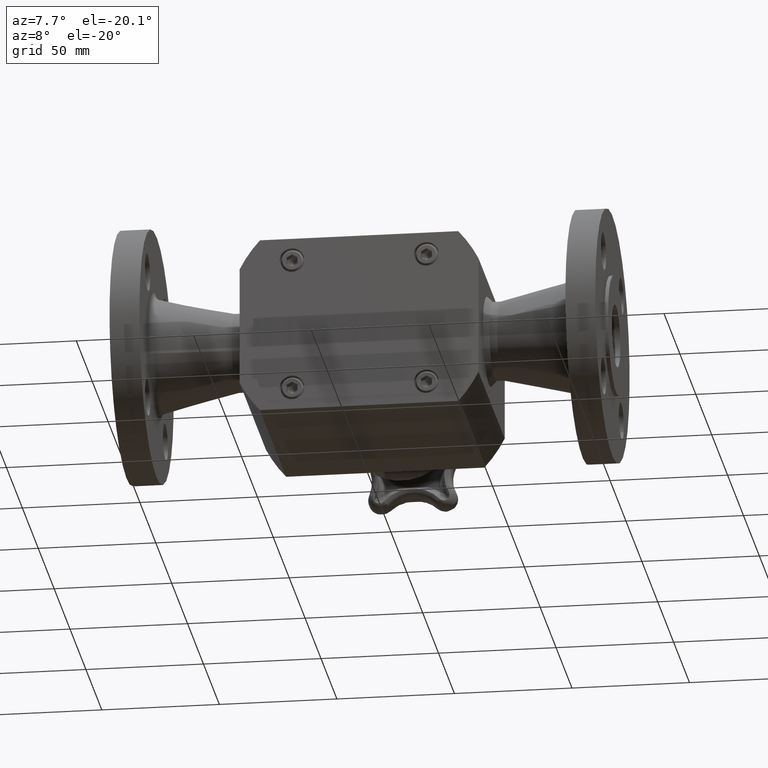
[diagram: clean part render]
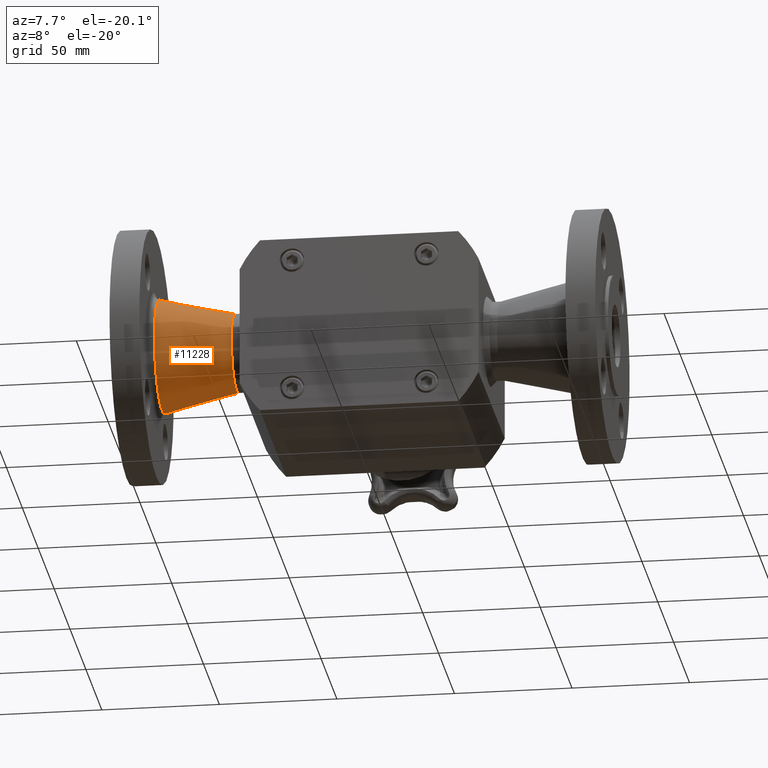
[diagram: same view with one face highlighted and labeled with its STEP entity id]
A machine part, auxiliary view. The second image highlights one B-rep face of the part: STEP entity #11228.
In plain terms, the highlighted conical surface has half-angle 13.107 deg.
Its self-contained STEP definition (entity closure, byte-faithful):
#11065=CARTESIAN_POINT('',(-2.225355513969999,0.669096118282323,-0.185112241726574));
#11066=VERTEX_POINT('',#11065);
#11067=CARTESIAN_POINT('',(-2.225355513969999,1.300000000000020,-4.846553E-016));
#11068=DIRECTION('',(-1.000000000000000,3.122502E-016,-3.122502E-016));
#11069=DIRECTION('',(4.415885E-016,0.707106781186553,-0.707106781186542));
#11070=AXIS2_PLACEMENT_3D('',#11067,#11068,#11069);
#11071=CIRCLE('',#11070,0.657500000003000);
#11072=EDGE_CURVE('',#11066,#11066,#11071,.T.);
#11205=CARTESIAN_POINT('',(-3.474712463687999,0.389967266261841,-0.267010877993822));
#11206=VERTEX_POINT('',#11205);
#11207=CARTESIAN_POINT('',(-3.474712463687999,1.300000000000021,-4.846553E-016));
#11208=DIRECTION('',(-1.000000000000000,3.122502E-016,-3.122502E-016));
#11209=DIRECTION('',(4.415885E-016,0.707106781186553,-0.707106781186542));
#11210=AXIS2_PLACEMENT_3D('',#11207,#11208,#11209);
#11211=CIRCLE('',#11210,0.948395690333000);
#11212=EDGE_CURVE('',#11206,#11206,#11211,.T.);
#11217=CARTESIAN_POINT('',(-3.696345870648049,1.300000000000021,-4.846553E-016));
#11218=DIRECTION('',(-1.0,6.245005E-016,0.0));
#11219=DIRECTION('',(-5.992392E-016,-0.959549629984896,-0.281539531142339));
#11220=AXIS2_PLACEMENT_3D('',#11217,#11218,#11219);
#11221=CONICAL_SURFACE('',#11220,1.000000000000000,13.107013607810845);
#11222=ORIENTED_EDGE('',*,*,#11212,.F.);
#11223=EDGE_LOOP('',(#11222));
#11224=FACE_OUTER_BOUND('',#11223,.T.);
#11225=ORIENTED_EDGE('',*,*,#11072,.T.);
#11226=EDGE_LOOP('',(#11225));
#11227=FACE_BOUND('',#11226,.T.);
#11228=ADVANCED_FACE('',(#11224,#11227),#11221,.T.);